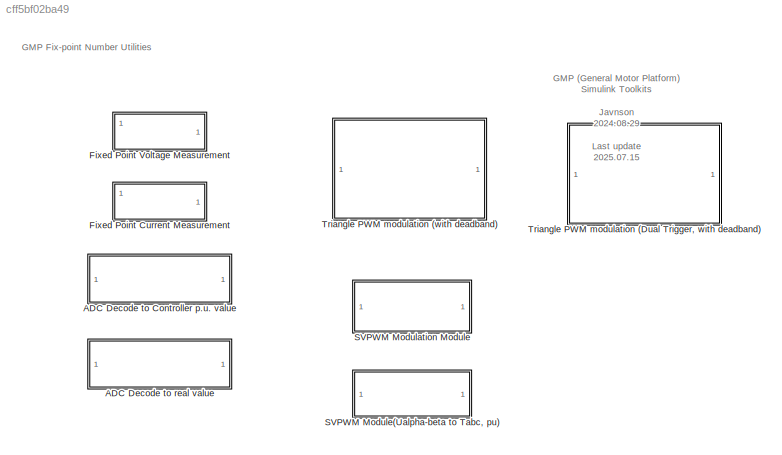
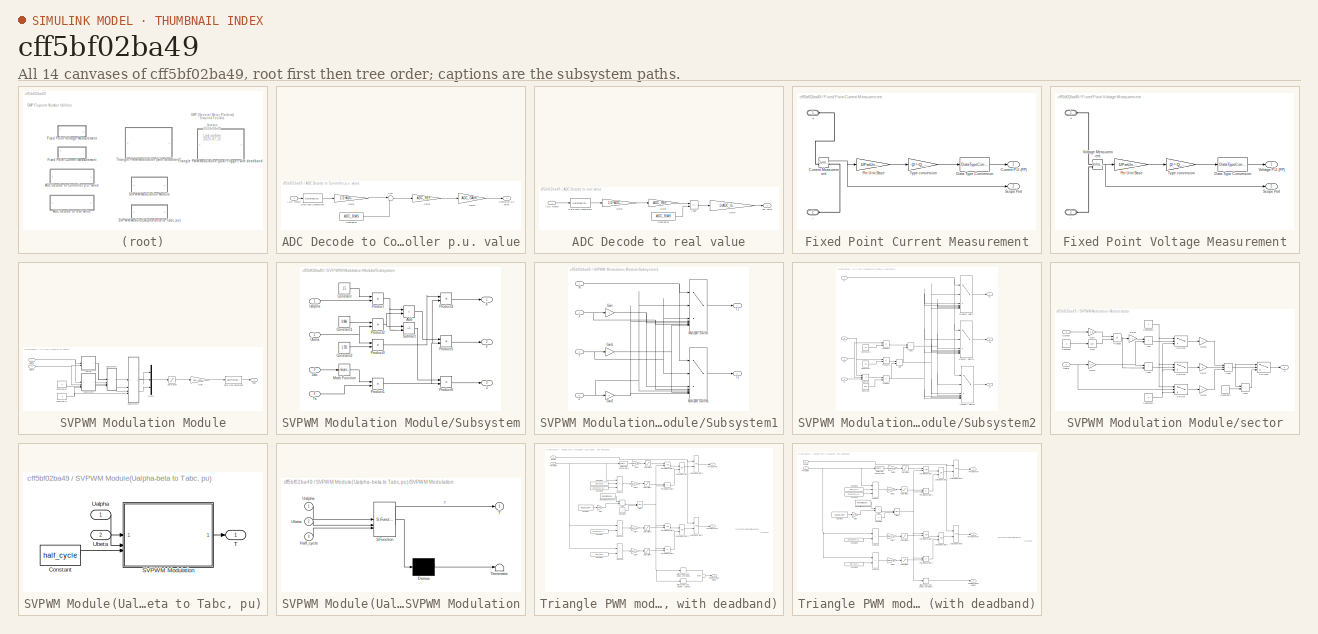
[diagram: thumbnail index - all 14 canvases of the model, root first then tree order]
MODEL slx_cff5bf02ba49
KIND library
CONFIG AbsTol = auto
CONFIG EnableMultiTasking = off
CONFIG FixedStep = auto
CONFIG MaxStep = auto
CONFIG MinStep = auto
CONFIG RelTol = 1e-3
CONFIG SampleTimeConstraint = Unconstrained
CONFIG SolverName = VariableStepAuto
CONFIG StartTime = 0.0
CONFIG StopTime = 10.0
BLOCK [SubSystem] ADC Decode to Controller p.u. value
  CopyFcn = set_param(gcbh,'LinkStatus','none');
BLOCK [Inport] ADC Decode to Controller p.u. value/ADC Result
BLOCK [Constant] ADC Decode to Controller p.u. value/Constant16
  Value = ADC_BIAS
BLOCK [Outport] ADC Decode to Controller p.u. value/Controller p.u. value
BLOCK [DataTypeConversion] ADC Decode to Controller p.u. value/Data Type Conversion1
  OutDataTypeStr = double
  RndMeth = Floor
  SaturateOnIntegerOverflow = off
BLOCK [Gain] ADC Decode to Controller p.u. value/Gain2
  Gain = 1/2^ADC_BIT
BLOCK [Gain] ADC Decode to Controller p.u. value/Gain3
  Gain = ADC_REF
BLOCK [Gain] ADC Decode to Controller p.u. value/Gain4
  Gain = ADC_GAIN
BLOCK [Sum] ADC Decode to Controller p.u. value/Sum
  Inputs = |+-
BLOCK [SubSystem] ADC Decode to real value
  CopyFcn = set_param(gcbh,'LinkStatus','none');
BLOCK [Inport] ADC Decode to real value/ADC Result
BLOCK [Sum] ADC Decode to real value/Add2
  IconShape = rectangular
  Inputs = +-
BLOCK [Constant] ADC Decode to real value/Constant16
  Value = ADC_BIAS
BLOCK [DataTypeConversion] ADC Decode to real value/Data Type Conversion1
  OutDataTypeStr = double
  RndMeth = Floor
  SaturateOnIntegerOverflow = off
BLOCK [Gain] ADC Decode to real value/Gain2
  Gain = 1/2^ADC_BIT
BLOCK [Gain] ADC Decode to real value/Gain3
  Gain = ADC_REF
BLOCK [Gain] ADC Decode to real value/Gain4
  Gain = 1/ADC_GAIN/ADC_REF
BLOCK [Outport] ADC Decode to real value/real value
BLOCK [SubSystem] Fixed Point Current Measurement
  CopyFcn = set_param(gcbh,'LinkStatus','none');
BLOCK [PMIOPort] Fixed Point Current Measurement/+
  Side = Left
BLOCK [PMIOPort] Fixed Point Current Measurement/-
  Port = 2
  Side = Left
BLOCK [Reference] Fixed Point Current Measurement/Current Measurement  REF=spsCurrentMeasurementLib/Current Measurement
  LibrarySourceBlock = sps_lib/Sensors and Measurements/Current Measurement
  SourceBlock = spsCurrentMeasurementLib/Current Measurement
  SourceType = Current Measurement
  UserDataPersistent = on
BLOCK [Outport] Fixed Point Current Measurement/Current P.U.(FP)
BLOCK [DataTypeConversion] Fixed Point Current Measurement/Data Type Conversion
  ConvertRealWorld = Stored Integer (SI)
  LockScale = on
  OutDataTypeStr = int32
  RndMeth = Floor
  SaturateOnIntegerOverflow = off
BLOCK [Gain] Fixed Point Current Measurement/Per Unit Base
  Gain = 1/PerUnit_Base
BLOCK [Outport] Fixed Point Current Measurement/Scope Port
  Port = 2
BLOCK [Gain] Fixed Point Current Measurement/Type conversion
  Gain = (2 ^ Q_VALUE)
BLOCK [SubSystem] Fixed Point Voltage Measurement
BLOCK [PMIOPort] Fixed Point Voltage Measurement/+
  Side = Left
BLOCK [PMIOPort] Fixed Point Voltage Measurement/-
  Port = 2
  Side = Left
BLOCK [DataTypeConversion] Fixed Point Voltage Measurement/Data Type Conversion
  ConvertRealWorld = Stored Integer (SI)
  LockScale = on
  OutDataTypeStr = int32
  RndMeth = Floor
  SaturateOnIntegerOverflow = off
BLOCK [Gain] Fixed Point Voltage Measurement/Per Unit Base
  Gain = 1/PerUnit_Base
BLOCK [Outport] Fixed Point Voltage Measurement/Scope Port
  Port = 2
BLOCK [Gain] Fixed Point Voltage Measurement/Type conversion
  Gain = (2 ^ Q_VALUE)
BLOCK [Reference] Fixed Point Voltage Measurement/Voltage Measurement  REF=spsVoltageMeasurementLib/Voltage Measurement
  LibrarySourceBlock = sps_lib/Sensors and Measurements/Voltage Measurement
  SourceBlock = spsVoltageMeasurementLib/Voltage Measurement
  SourceType = Voltage Measurement
  UserDataPersistent = on
BLOCK [Outport] Fixed Point Voltage Measurement/Voltage P.U.(FP)
BLOCK [SubSystem] SVPWM Modulation Module
BLOCK [Constant] SVPWM Modulation Module/Constant14
BLOCK [Constant] SVPWM Modulation Module/Constant15
BLOCK [DataTypeConversion] SVPWM Modulation Module/Data Type Conversion
  OutDataTypeStr = uint32
  RndMeth = Floor
  SaturateOnIntegerOverflow = off
BLOCK [Gain] SVPWM Modulation Module/Gain
  Gain = half_cmp
BLOCK [Mux] SVPWM Modulation Module/Mux3
  DisplayOption = bar
  Inputs = 3
BLOCK [Saturate] SVPWM Modulation Module/Saturation
  LowerLimit = -1
  UpperLimit = 1
BLOCK [SubSystem] SVPWM Modulation Module/Subsystem
BLOCK [Sum] SVPWM Modulation Module/Subsystem/Add
  IconShape = rectangular
BLOCK [Constant] SVPWM Modulation Module/Subsystem/Constant
  Value = 1.5
BLOCK [Constant] SVPWM Modulation Module/Subsystem/Constant1
  Value = 0.866
BLOCK [Constant] SVPWM Modulation Module/Subsystem/Constant2
  Value = 1.732
BLOCK [Math] SVPWM Modulation Module/Subsystem/Math Function
  Operator = reciprocal
BLOCK [Product] SVPWM Modulation Module/Subsystem/Product
BLOCK [Product] SVPWM Modulation Module/Subsystem/Product1
BLOCK [Product] SVPWM Modulation Module/Subsystem/Product2
BLOCK [Product] SVPWM Modulation Module/Subsystem/Product3
BLOCK [Product] SVPWM Modulation Module/Subsystem/Product4
BLOCK [Product] SVPWM Modulation Module/Subsystem/Product5
BLOCK [Product] SVPWM Modulation Module/Subsystem/Product6
BLOCK [Sum] SVPWM Modulation Module/Subsystem/Subtract
  IconShape = rectangular
  Inputs = +-
BLOCK [Inport] SVPWM Modulation Module/Subsystem/Ts
  Port = 4
BLOCK [Inport] SVPWM Modulation Module/Subsystem/Ualpha
BLOCK [Inport] SVPWM Modulation Module/Subsystem/Ubeta
  Port = 2
BLOCK [Inport] SVPWM Modulation Module/Subsystem/Udc
  Port = 3
BLOCK [Outport] SVPWM Modulation Module/Subsystem/X
BLOCK [Outport] SVPWM Modulation Module/Subsystem/Y
  Port = 2
BLOCK [Outport] SVPWM Modulation Module/Subsystem/Z
  Port = 3
BLOCK [SubSystem] SVPWM Modulation Module/Subsystem1
BLOCK [Gain] SVPWM Modulation Module/Subsystem1/Gain
  Gain = -1
BLOCK [Gain] SVPWM Modulation Module/Subsystem1/Gain1
  Gain = -1
BLOCK [Gain] SVPWM Modulation Module/Subsystem1/Gain2
  Gain = -1
BLOCK [MultiPortSwitch] SVPWM Modulation Module/Subsystem1/Multiport Switch
  DiagnosticForDefault = None
  InputSameDT = off
  Inputs = 6
  SaturateOnIntegerOverflow = off
BLOCK [MultiPortSwitch] SVPWM Modulation Module/Subsystem1/Multiport Switch1
  DiagnosticForDefault = None
  InputSameDT = off
  Inputs = 6
  SaturateOnIntegerOverflow = off
BLOCK [Inport] SVPWM Modulation Module/Subsystem1/N
BLOCK [Outport] SVPWM Modulation Module/Subsystem1/T1
BLOCK [Outport] SVPWM Modulation Module/Subsystem1/T2
  Port = 2
BLOCK [Inport] SVPWM Modulation Module/Subsystem1/X
  Port = 2
BLOCK [Inport] SVPWM Modulation Module/Subsystem1/Y
  Port = 3
BLOCK [Inport] SVPWM Modulation Module/Subsystem1/Z
  Port = 4
BLOCK [SubSystem] SVPWM Modulation Module/Subsystem2
BLOCK [Sum] SVPWM Modulation Module/Subsystem2/Add
  IconShape = rectangular
BLOCK [Sum] SVPWM Modulation Module/Subsystem2/Add1
  IconShape = rectangular
BLOCK [Constant] SVPWM Modulation Module/Subsystem2/Constant
  Value = 0.25
BLOCK [Constant] SVPWM Modulation Module/Subsystem2/Constant1
  Value = 0.5
BLOCK [Constant] SVPWM Modulation Module/Subsystem2/Constant2
  Value = 0.5
BLOCK [MultiPortSwitch] SVPWM Modulation Module/Subsystem2/Multiport Switch
  DiagnosticForDefault = None
  InputSameDT = off
  Inputs = 6
  SaturateOnIntegerOverflow = off
BLOCK [MultiPortSwitch] SVPWM Modulation Module/Subsystem2/Multiport Switch1
  DiagnosticForDefault = None
  InputSameDT = off
  Inputs = 6
  SaturateOnIntegerOverflow = off
BLOCK [MultiPortSwitch] SVPWM Modulation Module/Subsystem2/Multiport Switch2
  DiagnosticForDefault = None
  InputSameDT = off
  Inputs = 6
  SaturateOnIntegerOverflow = off
BLOCK [Inport] SVPWM Modulation Module/Subsystem2/N
BLOCK [Product] SVPWM Modulation Module/Subsystem2/Product
BLOCK [Product] SVPWM Modulation Module/Subsystem2/Product1
BLOCK [Product] SVPWM Modulation Module/Subsystem2/Product2
BLOCK [Sum] SVPWM Modulation Module/Subsystem2/Subtract
  IconShape = rectangular
  Inputs = --+
BLOCK [Inport] SVPWM Modulation Module/Subsystem2/T1
  Interpolate = off
  Port = 2
BLOCK [Inport] SVPWM Modulation Module/Subsystem2/T2
  Port = 3
BLOCK [Outport] SVPWM Modulation Module/Subsystem2/Ta
BLOCK [Outport] SVPWM Modulation Module/Subsystem2/Tb
  Port = 2
BLOCK [Outport] SVPWM Modulation Module/Subsystem2/Tc
  Port = 3
BLOCK [Inport] SVPWM Modulation Module/Subsystem2/Ts
  Port = 4
BLOCK [Outport] SVPWM Modulation Module/Tabc
BLOCK [Inport] SVPWM Modulation Module/Ualpha
BLOCK [Inport] SVPWM Modulation Module/Ubeta
  Port = 2
BLOCK [SubSystem] SVPWM Modulation Module/sector
BLOCK [Sum] SVPWM Modulation Module/sector/Add
  IconShape = rectangular
BLOCK [Sum] SVPWM Modulation Module/sector/Add1
  IconShape = rectangular
BLOCK [Sum] SVPWM Modulation Module/sector/Add2
  IconShape = rectangular
  Inputs = +++
BLOCK [Sum] SVPWM Modulation Module/sector/Add3
  IconShape = rectangular
BLOCK [Constant] SVPWM Modulation Module/sector/Constant
  Value = 3
BLOCK [Constant] SVPWM Modulation Module/sector/Constant1
  Value = 0
BLOCK [Constant] SVPWM Modulation Module/sector/Constant2
BLOCK [Constant] SVPWM Modulation Module/sector/Constant3
BLOCK [Gain] SVPWM Modulation Module/sector/Gain
  Gain = 0.5
BLOCK [Gain] SVPWM Modulation Module/sector/Gain1
  Gain = -1/2
BLOCK [Gain] SVPWM Modulation Module/sector/Gain2
  Gain = -1
BLOCK [Gain] SVPWM Modulation Module/sector/Gain3
  Gain = 4
BLOCK [Gain] SVPWM Modulation Module/sector/Gain4
  Gain = 2
BLOCK [Gain] SVPWM Modulation Module/sector/Gain5
BLOCK [Outport] SVPWM Modulation Module/sector/N
BLOCK [Product] SVPWM Modulation Module/sector/Product
BLOCK [Sqrt] SVPWM Modulation Module/sector/Sqrt
BLOCK [Switch] SVPWM Modulation Module/sector/Switch
  InputSameDT = off
  SaturateOnIntegerOverflow = off
BLOCK [Switch] SVPWM Modulation Module/sector/Switch1
  InputSameDT = off
  SaturateOnIntegerOverflow = off
BLOCK [Switch] SVPWM Modulation Module/sector/Switch2
  InputSameDT = off
  SaturateOnIntegerOverflow = off
BLOCK [Switch] SVPWM Modulation Module/sector/Switch3
  Criteria = u2 > Threshold
  InputSameDT = off
  SaturateOnIntegerOverflow = off
BLOCK [Inport] SVPWM Modulation Module/sector/Ualpha
BLOCK [Inport] SVPWM Modulation Module/sector/Ubeta
  Port = 2
BLOCK [SubSystem] SVPWM Module(Ualpha-beta to Tabc, pu)
BLOCK [Constant] SVPWM Module(Ualpha-beta to Tabc, pu)/Constant
  Value = half_cycle
BLOCK [SubSystem] SVPWM Module(Ualpha-beta to Tabc, pu)/SVPWM Modulation
  ErrorFcn = Stateflow.Translate.translate
  LibrarySourceBlock = simulink/User-Defined\nFunctions/MATLAB Function
  PermitHierarchicalResolution = ExplicitOnly
  SFBlockType = MATLAB Function
  TreatAsAtomicUnit = on
BLOCK [Demux] SVPWM Module(Ualpha-beta to Tabc, pu)/SVPWM Modulation/ Demux 
  Outputs = 1
BLOCK [S-Function] SVPWM Module(Ualpha-beta to Tabc, pu)/SVPWM Modulation/ SFunction 
  EnableBusSupport = off
  FunctionName = sf_sfun
  PortCounts = [3 2]
  SFcnIsStateOwnerBlock = off
  SFunctionDeploymentMode = off
  Tag = Stateflow S-Function 1
BLOCK [Terminator] SVPWM Module(Ualpha-beta to Tabc, pu)/SVPWM Modulation/ Terminator 
BLOCK [Inport] SVPWM Module(Ualpha-beta to Tabc, pu)/SVPWM Modulation/Half_cycle
  Port = 3
BLOCK [Outport] SVPWM Module(Ualpha-beta to Tabc, pu)/SVPWM Modulation/T
BLOCK [Inport] SVPWM Module(Ualpha-beta to Tabc, pu)/SVPWM Modulation/Ualpha
BLOCK [Inport] SVPWM Module(Ualpha-beta to Tabc, pu)/SVPWM Modulation/Ubeta
  Port = 2
BLOCK [Outport] SVPWM Module(Ualpha-beta to Tabc, pu)/T
BLOCK [Inport] SVPWM Module(Ualpha-beta to Tabc, pu)/Ualpha
BLOCK [Inport] SVPWM Module(Ualpha-beta to Tabc, pu)/Ubeta
  Port = 2
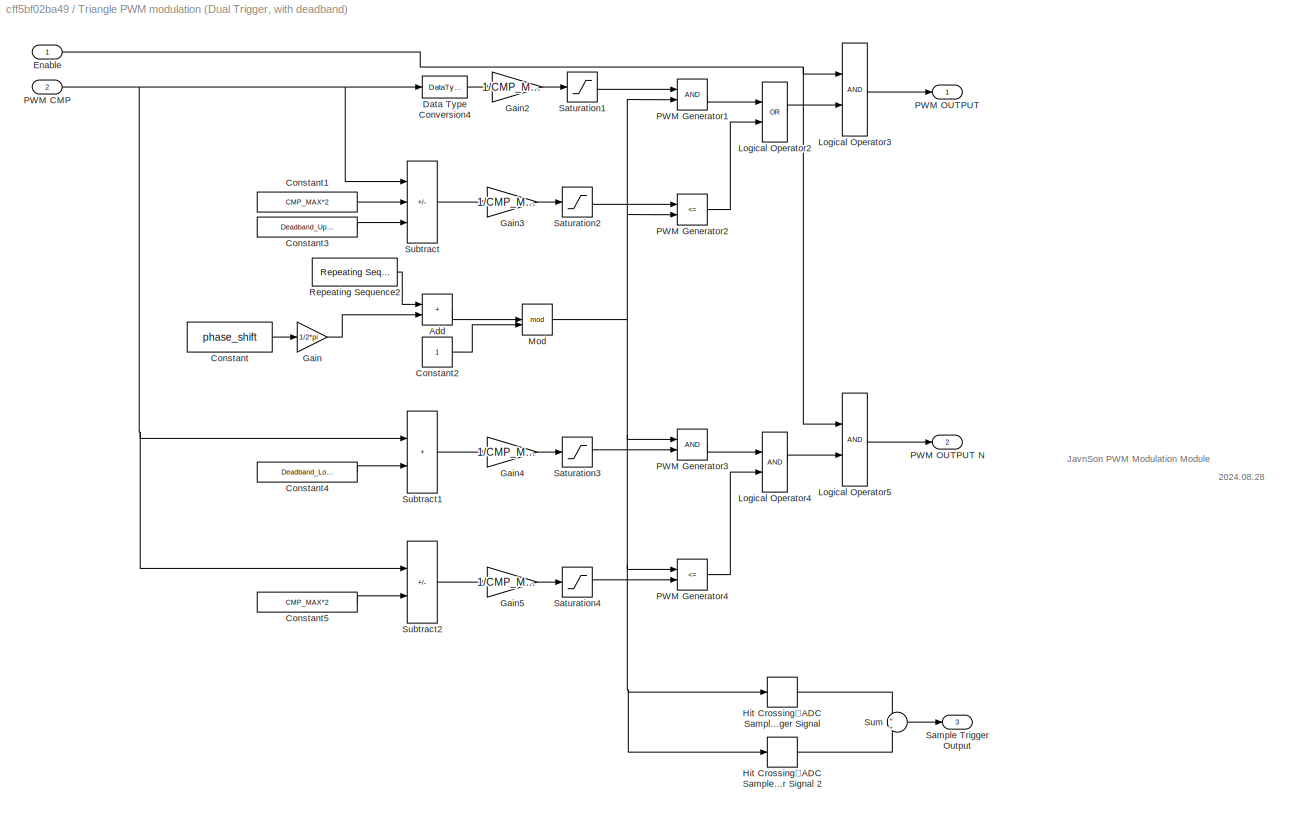
BLOCK [SubSystem] Triangle PWM modulation (Dual Trigger, with deadband)
BLOCK [Sum] Triangle PWM modulation (Dual Trigger, with deadband)/Add
  IconShape = rectangular
BLOCK [Constant] Triangle PWM modulation (Dual Trigger, with deadband)/Constant
  Value = phase_shift
BLOCK [Constant] Triangle PWM modulation (Dual Trigger, with deadband)/Constant1
  Value = CMP_MAX*2
BLOCK [Constant] Triangle PWM modulation (Dual Trigger, with deadband)/Constant2
BLOCK [Constant] Triangle PWM modulation (Dual Trigger, with deadband)/Constant3
  Value = Deadband_Upper
BLOCK [Constant] Triangle PWM modulation (Dual Trigger, with deadband)/Constant4
  Value = Deadband_Lower
BLOCK [Constant] Triangle PWM modulation (Dual Trigger, with deadband)/Constant5
  Value = CMP_MAX*2
BLOCK [DataTypeConversion] Triangle PWM modulation (Dual Trigger, with deadband)/Data Type Conversion4
  OutDataTypeStr = double
  RndMeth = Floor
  SaturateOnIntegerOverflow = off
BLOCK [Inport] Triangle PWM modulation (Dual Trigger, with deadband)/Enable
BLOCK [Gain] Triangle PWM modulation (Dual Trigger, with deadband)/Gain
  Gain = 1/2*pi
BLOCK [Gain] Triangle PWM modulation (Dual Trigger, with deadband)/Gain2
  Gain = 1/CMP_MAX/2
BLOCK [Gain] Triangle PWM modulation (Dual Trigger, with deadband)/Gain3
  Gain = 1/CMP_MAX/2
BLOCK [Gain] Triangle PWM modulation (Dual Trigger, with deadband)/Gain4
  Gain = 1/CMP_MAX/2
BLOCK [Gain] Triangle PWM modulation (Dual Trigger, with deadband)/Gain5
  Gain = 1/CMP_MAX/2
BLOCK [HitCross] Triangle PWM modulation (Dual Trigger, with deadband)/Hit Crossing：ADC Sample Trigger Signal
  HitCrossingDirection = rising
  HitCrossingOffset = 0.5
BLOCK [HitCross] Triangle PWM modulation (Dual Trigger, with deadband)/Hit Crossing：ADC Sample Trigger Signal 2
  HitCrossingDirection = falling
  HitCrossingOffset = 0.5
BLOCK [Logic] Triangle PWM modulation (Dual Trigger, with deadband)/Logical Operator2
  AllPortsSameDT = off
  Operator = OR
  OutDataTypeStr = boolean
BLOCK [Logic] Triangle PWM modulation (Dual Trigger, with deadband)/Logical Operator3
  AllPortsSameDT = off
  OutDataTypeStr = boolean
BLOCK [Logic] Triangle PWM modulation (Dual Trigger, with deadband)/Logical Operator4
  AllPortsSameDT = off
  OutDataTypeStr = boolean
BLOCK [Logic] Triangle PWM modulation (Dual Trigger, with deadband)/Logical Operator5
  AllPortsSameDT = off
  OutDataTypeStr = boolean
BLOCK [Math] Triangle PWM modulation (Dual Trigger, with deadband)/Mod
  Operator = mod
BLOCK [Inport] Triangle PWM modulation (Dual Trigger, with deadband)/PWM CMP
  Port = 2
BLOCK [RelationalOperator] Triangle PWM modulation (Dual Trigger, with deadband)/PWM Generator1
  InputSameDT = off
  OutDataTypeStr = boolean
BLOCK [RelationalOperator] Triangle PWM modulation (Dual Trigger, with deadband)/PWM Generator2
  InputSameDT = off
  Operator = <=
  OutDataTypeStr = boolean
BLOCK [RelationalOperator] Triangle PWM modulation (Dual Trigger, with deadband)/PWM Generator3
  InputSameDT = off
  OutDataTypeStr = boolean
BLOCK [RelationalOperator] Triangle PWM modulation (Dual Trigger, with deadband)/PWM Generator4
  InputSameDT = off
  Operator = <=
  OutDataTypeStr = boolean
BLOCK [Outport] Triangle PWM modulation (Dual Trigger, with deadband)/PWM OUTPUT
BLOCK [Outport] Triangle PWM modulation (Dual Trigger, with deadband)/PWM OUTPUT N
  Port = 2
BLOCK [Reference] Triangle PWM modulation (Dual Trigger, with deadband)/Repeating Sequence2  REF=simulink/Sources/Repeating
Sequence
  SourceBlock = simulink/Sources/Repeating\nSequence
  SourceType = Repeating table
BLOCK [Outport] Triangle PWM modulation (Dual Trigger, with deadband)/Sample Trigger Output
  Port = 3
BLOCK [Saturate] Triangle PWM modulation (Dual Trigger, with deadband)/Saturation1
  LowerLimit = 0
  UpperLimit = 1
BLOCK [Saturate] Triangle PWM modulation (Dual Trigger, with deadband)/Saturation2
  LowerLimit = 0
  UpperLimit = 1
BLOCK [Saturate] Triangle PWM modulation (Dual Trigger, with deadband)/Saturation3
  LowerLimit = 0
  UpperLimit = 1
BLOCK [Saturate] Triangle PWM modulation (Dual Trigger, with deadband)/Saturation4
  LowerLimit = 0
  UpperLimit = 1
BLOCK [Sum] Triangle PWM modulation (Dual Trigger, with deadband)/Subtract
  IconShape = rectangular
  Inputs = -++
BLOCK [Sum] Triangle PWM modulation (Dual Trigger, with deadband)/Subtract1
  IconShape = rectangular
BLOCK [Sum] Triangle PWM modulation (Dual Trigger, with deadband)/Subtract2
  IconShape = rectangular
  Inputs = -+
BLOCK [Sum] Triangle PWM modulation (Dual Trigger, with deadband)/Sum
  Inputs = +|+
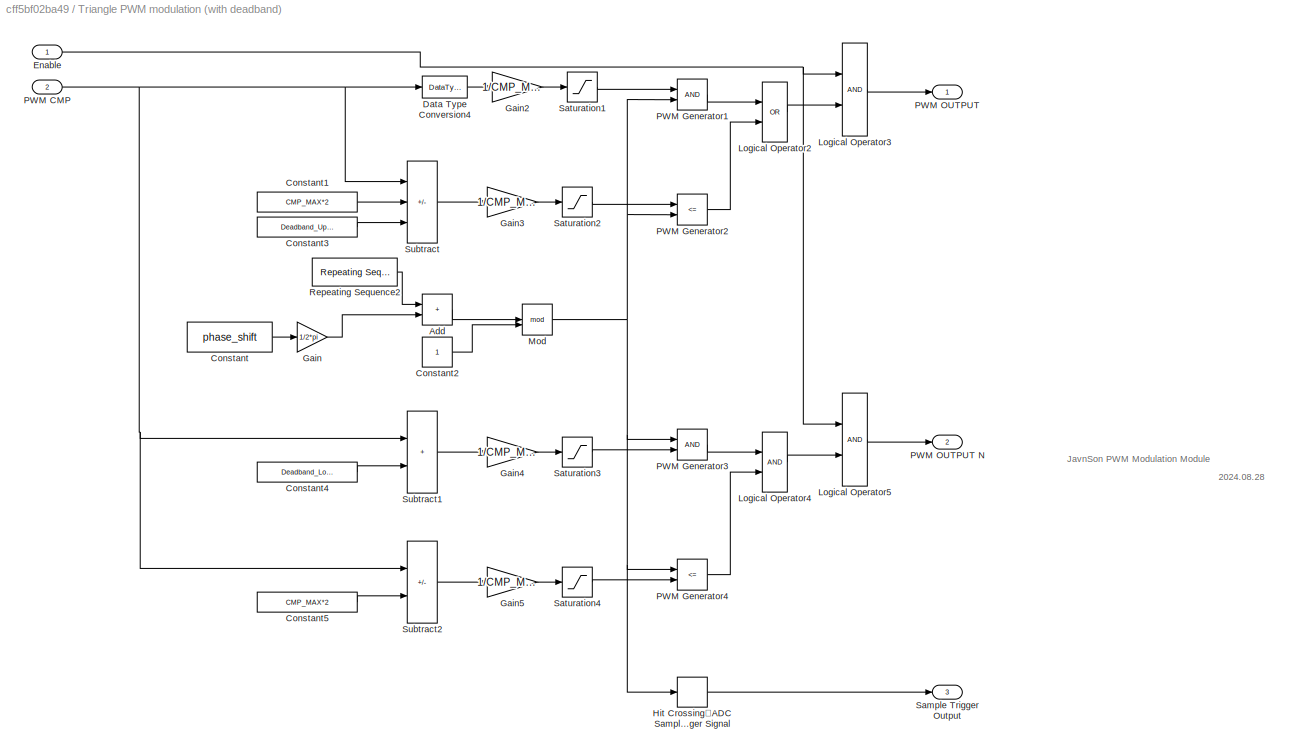
BLOCK [SubSystem] Triangle PWM modulation (with deadband)
BLOCK [Sum] Triangle PWM modulation (with deadband)/Add
  IconShape = rectangular
BLOCK [Constant] Triangle PWM modulation (with deadband)/Constant
  Value = phase_shift
BLOCK [Constant] Triangle PWM modulation (with deadband)/Constant1
  Value = CMP_MAX*2
BLOCK [Constant] Triangle PWM modulation (with deadband)/Constant2
BLOCK [Constant] Triangle PWM modulation (with deadband)/Constant3
  Value = Deadband_Upper
BLOCK [Constant] Triangle PWM modulation (with deadband)/Constant4
  Value = Deadband_Lower
BLOCK [Constant] Triangle PWM modulation (with deadband)/Constant5
  Value = CMP_MAX*2
BLOCK [DataTypeConversion] Triangle PWM modulation (with deadband)/Data Type Conversion4
  OutDataTypeStr = double
  RndMeth = Floor
  SaturateOnIntegerOverflow = off
BLOCK [Inport] Triangle PWM modulation (with deadband)/Enable
BLOCK [Gain] Triangle PWM modulation (with deadband)/Gain
  Gain = 1/2*pi
BLOCK [Gain] Triangle PWM modulation (with deadband)/Gain2
  Gain = 1/CMP_MAX/2
BLOCK [Gain] Triangle PWM modulation (with deadband)/Gain3
  Gain = 1/CMP_MAX/2
BLOCK [Gain] Triangle PWM modulation (with deadband)/Gain4
  Gain = 1/CMP_MAX/2
BLOCK [Gain] Triangle PWM modulation (with deadband)/Gain5
  Gain = 1/CMP_MAX/2
BLOCK [HitCross] Triangle PWM modulation (with deadband)/Hit Crossing：ADC Sample Trigger Signal
  HitCrossingDirection = rising
  HitCrossingOffset = 0.5
BLOCK [Logic] Triangle PWM modulation (with deadband)/Logical Operator2
  AllPortsSameDT = off
  Operator = OR
  OutDataTypeStr = boolean
BLOCK [Logic] Triangle PWM modulation (with deadband)/Logical Operator3
  AllPortsSameDT = off
  OutDataTypeStr = boolean
BLOCK [Logic] Triangle PWM modulation (with deadband)/Logical Operator4
  AllPortsSameDT = off
  OutDataTypeStr = boolean
BLOCK [Logic] Triangle PWM modulation (with deadband)/Logical Operator5
  AllPortsSameDT = off
  OutDataTypeStr = boolean
BLOCK [Math] Triangle PWM modulation (with deadband)/Mod
  Operator = mod
BLOCK [Inport] Triangle PWM modulation (with deadband)/PWM CMP
  Port = 2
BLOCK [RelationalOperator] Triangle PWM modulation (with deadband)/PWM Generator1
  InputSameDT = off
  OutDataTypeStr = boolean
BLOCK [RelationalOperator] Triangle PWM modulation (with deadband)/PWM Generator2
  InputSameDT = off
  Operator = <=
  OutDataTypeStr = boolean
BLOCK [RelationalOperator] Triangle PWM modulation (with deadband)/PWM Generator3
  InputSameDT = off
  OutDataTypeStr = boolean
BLOCK [RelationalOperator] Triangle PWM modulation (with deadband)/PWM Generator4
  InputSameDT = off
  Operator = <=
  OutDataTypeStr = boolean
BLOCK [Outport] Triangle PWM modulation (with deadband)/PWM OUTPUT
BLOCK [Outport] Triangle PWM modulation (with deadband)/PWM OUTPUT N
  Port = 2
BLOCK [Reference] Triangle PWM modulation (with deadband)/Repeating Sequence2  REF=simulink/Sources/Repeating
Sequence
  SourceBlock = simulink/Sources/Repeating\nSequence
  SourceType = Repeating table
BLOCK [Outport] Triangle PWM modulation (with deadband)/Sample Trigger Output
  Port = 3
BLOCK [Saturate] Triangle PWM modulation (with deadband)/Saturation1
  LowerLimit = 0
  UpperLimit = 1
BLOCK [Saturate] Triangle PWM modulation (with deadband)/Saturation2
  LowerLimit = 0
  UpperLimit = 1
BLOCK [Saturate] Triangle PWM modulation (with deadband)/Saturation3
  LowerLimit = 0
  UpperLimit = 1
BLOCK [Saturate] Triangle PWM modulation (with deadband)/Saturation4
  LowerLimit = 0
  UpperLimit = 1
BLOCK [Sum] Triangle PWM modulation (with deadband)/Subtract
  IconShape = rectangular
  Inputs = -++
BLOCK [Sum] Triangle PWM modulation (with deadband)/Subtract1
  IconShape = rectangular
BLOCK [Sum] Triangle PWM modulation (with deadband)/Subtract2
  IconShape = rectangular
  Inputs = -+
ANNOTATION (root): GMP (General Motor Platform) Simulink Toolkits
ANNOTATION (root): GMP Fix-point Number Utilities
ANNOTATION (root): Javnson 2024.08.29 Last update 2025.07.15
ANNOTATION Triangle PWM modulation (Dual Trigger, with deadband): 2024.08.28
ANNOTATION Triangle PWM modulation (Dual Trigger, with deadband): JavnSon PWM Modulation Module
ANNOTATION Triangle PWM modulation (with deadband): 2024.08.28
ANNOTATION Triangle PWM modulation (with deadband): JavnSon PWM Modulation Module
LINE ADC Decode to Controller p.u. value/ADC Result:1 -> ADC Decode to Controller p.u. value/Data Type Conversion1:1
LINE ADC Decode to Controller p.u. value/Constant16:1 -> ADC Decode to Controller p.u. value/Sum:2
LINE ADC Decode to Controller p.u. value/Data Type Conversion1:1 -> ADC Decode to Controller p.u. value/Gain2:1
LINE ADC Decode to Controller p.u. value/Gain2:1 -> ADC Decode to Controller p.u. value/Sum:1
LINE ADC Decode to Controller p.u. value/Gain3:1 -> ADC Decode to Controller p.u. value/Gain4:1
LINE ADC Decode to Controller p.u. value/Gain4:1 -> ADC Decode to Controller p.u. value/Controller p.u. value:1
LINE ADC Decode to Controller p.u. value/Sum:1 -> ADC Decode to Controller p.u. value/Gain3:1
LINE ADC Decode to real value/ADC Result:1 -> ADC Decode to real value/Data Type Conversion1:1
LINE ADC Decode to real value/Add2:1 -> ADC Decode to real value/Gain4:1
LINE ADC Decode to real value/Constant16:1 -> ADC Decode to real value/Add2:2
LINE ADC Decode to real value/Data Type Conversion1:1 -> ADC Decode to real value/Gain2:1
LINE ADC Decode to real value/Gain2:1 -> ADC Decode to real value/Gain3:1
LINE ADC Decode to real value/Gain3:1 -> ADC Decode to real value/Add2:1
LINE ADC Decode to real value/Gain4:1 -> ADC Decode to real value/real value:1
NET Fixed Point Current Measurement/Current Measurement:1 -> Fixed Point Current Measurement/Per Unit Base:1, Fixed Point Current Measurement/Scope Port:1
LINE Fixed Point Current Measurement/Data Type Conversion:1 -> Fixed Point Current Measurement/Current P.U.(FP):1
LINE Fixed Point Current Measurement/Per Unit Base:1 -> Fixed Point Current Measurement/Type conversion:1
LINE Fixed Point Current Measurement/Type conversion:1 -> Fixed Point Current Measurement/Data Type Conversion:1
LINE Fixed Point Voltage Measurement/Data Type Conversion:1 -> Fixed Point Voltage Measurement/Voltage P.U.(FP):1
LINE Fixed Point Voltage Measurement/Per Unit Base:1 -> Fixed Point Voltage Measurement/Type conversion:1
LINE Fixed Point Voltage Measurement/Type conversion:1 -> Fixed Point Voltage Measurement/Data Type Conversion:1
NET Fixed Point Voltage Measurement/Voltage Measurement:1 -> Fixed Point Voltage Measurement/Per Unit Base:1, Fixed Point Voltage Measurement/Scope Port:1
NET SVPWM Modulation Module/Constant14:1 -> SVPWM Modulation Module/Subsystem2:4, SVPWM Modulation Module/Subsystem:4
LINE SVPWM Modulation Module/Constant15:1 -> SVPWM Modulation Module/Subsystem:3
LINE SVPWM Modulation Module/Data Type Conversion:1 -> SVPWM Modulation Module/Tabc:1
LINE SVPWM Modulation Module/Gain:1 -> SVPWM Modulation Module/Data Type Conversion:1
LINE SVPWM Modulation Module/Mux3:1 -> SVPWM Modulation Module/Saturation:1
LINE SVPWM Modulation Module/Saturation:1 -> SVPWM Modulation Module/Gain:1
LINE SVPWM Modulation Module/Subsystem/Add:1 -> SVPWM Modulation Module/Subsystem/Product5:1
LINE SVPWM Modulation Module/Subsystem/Constant1:1 -> SVPWM Modulation Module/Subsystem/Product2:1
LINE SVPWM Modulation Module/Subsystem/Constant2:1 -> SVPWM Modulation Module/Subsystem/Product3:2
LINE SVPWM Modulation Module/Subsystem/Constant:1 -> SVPWM Modulation Module/Subsystem/Product:1
LINE SVPWM Modulation Module/Subsystem/Math Function:1 -> SVPWM Modulation Module/Subsystem/Product1:1
NET SVPWM Modulation Module/Subsystem/Product1:1 -> SVPWM Modulation Module/Subsystem/Product4:2, SVPWM Modulation Module/Subsystem/Product5:2, SVPWM Modulation Module/Subsystem/Product6:2
NET SVPWM Modulation Module/Subsystem/Product2:1 -> SVPWM Modulation Module/Subsystem/Add:2, SVPWM Modulation Module/Subsystem/Subtract:1
LINE SVPWM Modulation Module/Subsystem/Product3:1 -> SVPWM Modulation Module/Subsystem/Product4:1
LINE SVPWM Modulation Module/Subsystem/Product4:1 -> SVPWM Modulation Module/Subsystem/X:1
LINE SVPWM Modulation Module/Subsystem/Product5:1 -> SVPWM Modulation Module/Subsystem/Y:1
LINE SVPWM Modulation Module/Subsystem/Product6:1 -> SVPWM Modulation Module/Subsystem/Z:1
NET SVPWM Modulation Module/Subsystem/Product:1 -> SVPWM Modulation Module/Subsystem/Add:1, SVPWM Modulation Module/Subsystem/Subtract:2
LINE SVPWM Modulation Module/Subsystem/Subtract:1 -> SVPWM Modulation Module/Subsystem/Product6:1
LINE SVPWM Modulation Module/Subsystem/Ts:1 -> SVPWM Modulation Module/Subsystem/Product1:2
LINE SVPWM Modulation Module/Subsystem/Ualpha:1 -> SVPWM Modulation Module/Subsystem/Product:2
NET SVPWM Modulation Module/Subsystem/Ubeta:1 -> SVPWM Modulation Module/Subsystem/Product2:2, SVPWM Modulation Module/Subsystem/Product3:1
LINE SVPWM Modulation Module/Subsystem/Udc:1 -> SVPWM Modulation Module/Subsystem/Math Function:1
NET SVPWM Modulation Module/Subsystem1/Gain1:1 -> SVPWM Modulation Module/Subsystem1/Multiport Switch1:6, SVPWM Modulation Module/Subsystem1/Multiport Switch:7
NET SVPWM Modulation Module/Subsystem1/Gain2:1 -> SVPWM Modulation Module/Subsystem1/Multiport Switch1:7, SVPWM Modulation Module/Subsystem1/Multiport Switch:4
NET SVPWM Modulation Module/Subsystem1/Gain:1 -> SVPWM Modulation Module/Subsystem1/Multiport Switch1:3, SVPWM Modulation Module/Subsystem1/Multiport Switch:5
LINE SVPWM Modulation Module/Subsystem1/Multiport Switch1:1 -> SVPWM Modulation Module/Subsystem1/T2:1
LINE SVPWM Modulation Module/Subsystem1/Multiport Switch:1 -> SVPWM Modulation Module/Subsystem1/T1:1
NET SVPWM Modulation Module/Subsystem1/N:1 -> SVPWM Modulation Module/Subsystem1/Multiport Switch1:1, SVPWM Modulation Module/Subsystem1/Multiport Switch:1
NET SVPWM Modulation Module/Subsystem1/X:1 -> SVPWM Modulation Module/Subsystem1/Gain:1, SVPWM Modulation Module/Subsystem1/Multiport Switch1:4, SVPWM Modulation Module/Subsystem1/Multiport Switch:6
NET SVPWM Modulation Module/Subsystem1/Y:1 -> SVPWM Modulation Module/Subsystem1/Gain1:1, SVPWM Modulation Module/Subsystem1/Multiport Switch1:2, SVPWM Modulation Module/Subsystem1/Multiport Switch:3
NET SVPWM Modulation Module/Subsystem1/Z:1 -> SVPWM Modulation Module/Subsystem1/Gain2:1, SVPWM Modulation Module/Subsystem1/Multiport Switch1:5, SVPWM Modulation Module/Subsystem1/Multiport Switch:2
LINE SVPWM Modulation Module/Subsystem1:1 -> SVPWM Modulation Module/Subsystem2:2
LINE SVPWM Modulation Module/Subsystem1:2 -> SVPWM Modulation Module/Subsystem2:3
NET SVPWM Modulation Module/Subsystem2/Add1:1 -> SVPWM Modulation Module/Subsystem2/Multiport Switch1:3, SVPWM Modulation Module/Subsystem2/Multiport Switch1:7, SVPWM Modulation Module/Subsystem2/Multiport Switch2:2, SVPWM Modulation Module/Subsystem2/Multiport Switch2:4, SVPWM Modulation Module/Subsystem2/Multiport Switch:5, SVPWM Modulation Module/Subsystem2/Multiport Switch:6
NET SVPWM Modulation Module/Subsystem2/Add:1 -> SVPWM Modulation Module/Subsystem2/Add1:2, SVPWM Modulation Module/Subsystem2/Multiport Switch1:4, SVPWM Modulation Module/Subsystem2/Multiport Switch1:5, SVPWM Modulation Module/Subsystem2/Multiport Switch2:3, SVPWM Modulation Module/Subsystem2/Multiport Switch2:6, SVPWM Modulation Module/Subsystem2/Multiport Switch:2, SVPWM Modulation Module/Subsystem2/Multiport Switch:7
LINE SVPWM Modulation Module/Subsystem2/Constant1:1 -> SVPWM Modulation Module/Subsystem2/Product1:2
LINE SVPWM Modulation Module/Subsystem2/Constant2:1 -> SVPWM Modulation Module/Subsystem2/Product2:2
LINE SVPWM Modulation Module/Subsystem2/Constant:1 -> SVPWM Modulation Module/Subsystem2/Product:2
LINE SVPWM Modulation Module/Subsystem2/Multiport Switch1:1 -> SVPWM Modulation Module/Subsystem2/Tb:1
LINE SVPWM Modulation Module/Subsystem2/Multiport Switch2:1 -> SVPWM Modulation Module/Subsystem2/Tc:1
LINE SVPWM Modulation Module/Subsystem2/Multiport Switch:1 -> SVPWM Modulation Module/Subsystem2/Ta:1
NET SVPWM Modulation Module/Subsystem2/N:1 -> SVPWM Modulation Module/Subsystem2/Multiport Switch1:1, SVPWM Modulation Module/Subsystem2/Multiport Switch2:1, SVPWM Modulation Module/Subsystem2/Multiport Switch:1
LINE SVPWM Modulation Module/Subsystem2/Product1:1 -> SVPWM Modulation Module/Subsystem2/Add1:1
LINE SVPWM Modulation Module/Subsystem2/Product2:1 -> SVPWM Modulation Module/Subsystem2/Add:1
NET SVPWM Modulation Module/Subsystem2/Product:1 -> SVPWM Modulation Module/Subsystem2/Add:2, SVPWM Modulation Module/Subsystem2/Multiport Switch1:2, SVPWM Modulation Module/Subsystem2/Multiport Switch1:6, SVPWM Modulation Module/Subsystem2/Multiport Switch2:5, SVPWM Modulation Module/Subsystem2/Multiport Switch2:7, SVPWM Modulation Module/Subsystem2/Multiport Switch:3, SVPWM Modulation Module/Subsystem2/Multiport Switch:4
LINE SVPWM Modulation Module/Subsystem2/Subtract:1 -> SVPWM Modulation Module/Subsystem2/Product:1
NET SVPWM Modulation Module/Subsystem2/T1:1 -> SVPWM Modulation Module/Subsystem2/Product2:1, SVPWM Modulation Module/Subsystem2/Subtract:1
NET SVPWM Modulation Module/Subsystem2/T2:1 -> SVPWM Modulation Module/Subsystem2/Product1:1, SVPWM Modulation Module/Subsystem2/Subtract:2
LINE SVPWM Modulation Module/Subsystem2/Ts:1 -> SVPWM Modulation Module/Subsystem2/Subtract:3
LINE SVPWM Modulation Module/Subsystem2:1 -> SVPWM Modulation Module/Mux3:1
LINE SVPWM Modulation Module/Subsystem2:2 -> SVPWM Modulation Module/Mux3:2
LINE SVPWM Modulation Module/Subsystem2:3 -> SVPWM Modulation Module/Mux3:3
LINE SVPWM Modulation Module/Subsystem:1 -> SVPWM Modulation Module/Subsystem1:2
LINE SVPWM Modulation Module/Subsystem:2 -> SVPWM Modulation Module/Subsystem1:3
LINE SVPWM Modulation Module/Subsystem:3 -> SVPWM Modulation Module/Subsystem1:4
NET SVPWM Modulation Module/Ualpha:1 -> SVPWM Modulation Module/Subsystem:1, SVPWM Modulation Module/sector:1
NET SVPWM Modulation Module/Ubeta:1 -> SVPWM Modulation Module/Subsystem:2, SVPWM Modulation Module/sector:2
LINE SVPWM Modulation Module/sector/Add1:1 -> SVPWM Modulation Module/sector/Switch1:2
NET SVPWM Modulation Module/sector/Add2:1 -> SVPWM Modulation Module/sector/Add3:1, SVPWM Modulation Module/sector/Switch3:1, SVPWM Modulation Module/sector/Switch3:2
LINE SVPWM Modulation Module/sector/Add3:1 -> SVPWM Modulation Module/sector/Switch3:3
LINE SVPWM Modulation Module/sector/Add:1 -> SVPWM Modulation Module/sector/Switch2:2
NET SVPWM Modulation Module/sector/Constant1:1 -> SVPWM Modulation Module/sector/Switch1:3, SVPWM Modulation Module/sector/Switch2:3, SVPWM Modulation Module/sector/Switch:3
NET SVPWM Modulation Module/sector/Constant2:1 -> SVPWM Modulation Module/sector/Switch1:1, SVPWM Modulation Module/sector/Switch2:1, SVPWM Modulation Module/sector/Switch:1
LINE SVPWM Modulation Module/sector/Constant3:1 -> SVPWM Modulation Module/sector/Add3:2
LINE SVPWM Modulation Module/sector/Constant:1 -> SVPWM Modulation Module/sector/Sqrt:1
NET SVPWM Modulation Module/sector/Gain1:1 -> SVPWM Modulation Module/sector/Add1:1, SVPWM Modulation Module/sector/Add:2
LINE SVPWM Modulation Module/sector/Gain2:1 -> SVPWM Modulation Module/sector/Add:1
LINE SVPWM Modulation Module/sector/Gain3:1 -> SVPWM Modulation Module/sector/Add2:1
LINE SVPWM Modulation Module/sector/Gain4:1 -> SVPWM Modulation Module/sector/Add2:2
LINE SVPWM Modulation Module/sector/Gain5:1 -> SVPWM Modulation Module/sector/Add2:3
LINE SVPWM Modulation Module/sector/Gain:1 -> SVPWM Modulation Module/sector/Product:1
NET SVPWM Modulation Module/sector/Product:1 -> SVPWM Modulation Module/sector/Add1:2, SVPWM Modulation Module/sector/Gain2:1
LINE SVPWM Modulation Module/sector/Sqrt:1 -> SVPWM Modulation Module/sector/Product:2
LINE SVPWM Modulation Module/sector/Switch1:1 -> SVPWM Modulation Module/sector/Gain4:1
LINE SVPWM Modulation Module/sector/Switch2:1 -> SVPWM Modulation Module/sector/Gain3:1
LINE SVPWM Modulation Module/sector/Switch3:1 -> SVPWM Modulation Module/sector/N:1
LINE SVPWM Modulation Module/sector/Switch:1 -> SVPWM Modulation Module/sector/Gain5:1
LINE SVPWM Modulation Module/sector/Ualpha:1 -> SVPWM Modulation Module/sector/Gain:1
NET SVPWM Modulation Module/sector/Ubeta:1 -> SVPWM Modulation Module/sector/Gain1:1, SVPWM Modulation Module/sector/Switch:2
NET SVPWM Modulation Module/sector:1 -> SVPWM Modulation Module/Subsystem1:1, SVPWM Modulation Module/Subsystem2:1
LINE SVPWM Module(Ualpha-beta to Tabc, pu)/Constant:1 -> SVPWM Module(Ualpha-beta to Tabc, pu)/SVPWM Modulation:3
LINE SVPWM Module(Ualpha-beta to Tabc, pu)/SVPWM Modulation:1 -> SVPWM Module(Ualpha-beta to Tabc, pu)/T:1
LINE SVPWM Module(Ualpha-beta to Tabc, pu)/Ualpha:1 -> SVPWM Module(Ualpha-beta to Tabc, pu)/SVPWM Modulation:1
LINE SVPWM Module(Ualpha-beta to Tabc, pu)/Ubeta:1 -> SVPWM Module(Ualpha-beta to Tabc, pu)/SVPWM Modulation:2
LINE Triangle PWM modulation (Dual Trigger, with deadband)/Add:1 -> Triangle PWM modulation (Dual Trigger, with deadband)/Mod:1
LINE Triangle PWM modulation (Dual Trigger, with deadband)/Constant1:1 -> Triangle PWM modulation (Dual Trigger, with deadband)/Subtract:2
LINE Triangle PWM modulation (Dual Trigger, with deadband)/Constant2:1 -> Triangle PWM modulation (Dual Trigger, with deadband)/Mod:2
LINE Triangle PWM modulation (Dual Trigger, with deadband)/Constant3:1 -> Triangle PWM modulation (Dual Trigger, with deadband)/Subtract:3
LINE Triangle PWM modulation (Dual Trigger, with deadband)/Constant4:1 -> Triangle PWM modulation (Dual Trigger, with deadband)/Subtract1:2
LINE Triangle PWM modulation (Dual Trigger, with deadband)/Constant5:1 -> Triangle PWM modulation (Dual Trigger, with deadband)/Subtract2:2
LINE Triangle PWM modulation (Dual Trigger, with deadband)/Constant:1 -> Triangle PWM modulation (Dual Trigger, with deadband)/Gain:1
LINE Triangle PWM modulation (Dual Trigger, with deadband)/Data Type Conversion4:1 -> Triangle PWM modulation (Dual Trigger, with deadband)/Gain2:1
NET Triangle PWM modulation (Dual Trigger, with deadband)/Enable:1 -> Triangle PWM modulation (Dual Trigger, with deadband)/Logical Operator3:1, Triangle PWM modulation (Dual Trigger, with deadband)/Logical Operator5:1
LINE Triangle PWM modulation (Dual Trigger, with deadband)/Gain2:1 -> Triangle PWM modulation (Dual Trigger, with deadband)/Saturation1:1
LINE Triangle PWM modulation (Dual Trigger, with deadband)/Gain3:1 -> Triangle PWM modulation (Dual Trigger, with deadband)/Saturation2:1
LINE Triangle PWM modulation (Dual Trigger, with deadband)/Gain4:1 -> Triangle PWM modulation (Dual Trigger, with deadband)/Saturation3:1
LINE Triangle PWM modulation (Dual Trigger, with deadband)/Gain5:1 -> Triangle PWM modulation (Dual Trigger, with deadband)/Saturation4:1
LINE Triangle PWM modulation (Dual Trigger, with deadband)/Gain:1 -> Triangle PWM modulation (Dual Trigger, with deadband)/Add:2
LINE Triangle PWM modulation (Dual Trigger, with deadband)/Hit Crossing：ADC Sample Trigger Signal 2:1 -> Triangle PWM modulation (Dual Trigger, with deadband)/Sum:2
LINE Triangle PWM modulation (Dual Trigger, with deadband)/Hit Crossing：ADC Sample Trigger Signal:1 -> Triangle PWM modulation (Dual Trigger, with deadband)/Sum:1
LINE Triangle PWM modulation (Dual Trigger, with deadband)/Logical Operator2:1 -> Triangle PWM modulation (Dual Trigger, with deadband)/Logical Operator3:2
LINE Triangle PWM modulation (Dual Trigger, with deadband)/Logical Operator3:1 -> Triangle PWM modulation (Dual Trigger, with deadband)/PWM OUTPUT:1
LINE Triangle PWM modulation (Dual Trigger, with deadband)/Logical Operator4:1 -> Triangle PWM modulation (Dual Trigger, with deadband)/Logical Operator5:2
LINE Triangle PWM modulation (Dual Trigger, with deadband)/Logical Operator5:1 -> Triangle PWM modulation (Dual Trigger, with deadband)/PWM OUTPUT N:1
NET Triangle PWM modulation (Dual Trigger, with deadband)/Mod:1 -> Triangle PWM modulation (Dual Trigger, with deadband)/Hit Crossing：ADC Sample Trigger Signal 2:1, Triangle PWM modulation (Dual Trigger, with deadband)/Hit Crossing：ADC Sample Trigger Signal:1, Triangle PWM modulation (Dual Trigger, with deadband)/PWM Generator1:2, Triangle PWM modulation (Dual Trigger, with deadband)/PWM Generator2:2, Triangle PWM modulation (Dual Trigger, with deadband)/PWM Generator3:1, Triangle PWM modulation (Dual Trigger, with deadband)/PWM Generator4:1
NET Triangle PWM modulation (Dual Trigger, with deadband)/PWM CMP:1 -> Triangle PWM modulation (Dual Trigger, with deadband)/Data Type Conversion4:1, Triangle PWM modulation (Dual Trigger, with deadband)/Subtract1:1, Triangle PWM modulation (Dual Trigger, with deadband)/Subtract2:1, Triangle PWM modulation (Dual Trigger, with deadband)/Subtract:1
LINE Triangle PWM modulation (Dual Trigger, with deadband)/PWM Generator1:1 -> Triangle PWM modulation (Dual Trigger, with deadband)/Logical Operator2:1
LINE Triangle PWM modulation (Dual Trigger, with deadband)/PWM Generator2:1 -> Triangle PWM modulation (Dual Trigger, with deadband)/Logical Operator2:2
LINE Triangle PWM modulation (Dual Trigger, with deadband)/PWM Generator3:1 -> Triangle PWM modulation (Dual Trigger, with deadband)/Logical Operator4:1
LINE Triangle PWM modulation (Dual Trigger, with deadband)/PWM Generator4:1 -> Triangle PWM modulation (Dual Trigger, with deadband)/Logical Operator4:2
LINE Triangle PWM modulation (Dual Trigger, with deadband)/Repeating Sequence2:1 -> Triangle PWM modulation (Dual Trigger, with deadband)/Add:1
LINE Triangle PWM modulation (Dual Trigger, with deadband)/Saturation1:1 -> Triangle PWM modulation (Dual Trigger, with deadband)/PWM Generator1:1
LINE Triangle PWM modulation (Dual Trigger, with deadband)/Saturation2:1 -> Triangle PWM modulation (Dual Trigger, with deadband)/PWM Generator2:1
LINE Triangle PWM modulation (Dual Trigger, with deadband)/Saturation3:1 -> Triangle PWM modulation (Dual Trigger, with deadband)/PWM Generator3:2
LINE Triangle PWM modulation (Dual Trigger, with deadband)/Saturation4:1 -> Triangle PWM modulation (Dual Trigger, with deadband)/PWM Generator4:2
LINE Triangle PWM modulation (Dual Trigger, with deadband)/Subtract1:1 -> Triangle PWM modulation (Dual Trigger, with deadband)/Gain4:1
LINE Triangle PWM modulation (Dual Trigger, with deadband)/Subtract2:1 -> Triangle PWM modulation (Dual Trigger, with deadband)/Gain5:1
LINE Triangle PWM modulation (Dual Trigger, with deadband)/Subtract:1 -> Triangle PWM modulation (Dual Trigger, with deadband)/Gain3:1
LINE Triangle PWM modulation (Dual Trigger, with deadband)/Sum:1 -> Triangle PWM modulation (Dual Trigger, with deadband)/Sample Trigger Output:1
LINE Triangle PWM modulation (with deadband)/Add:1 -> Triangle PWM modulation (with deadband)/Mod:1
LINE Triangle PWM modulation (with deadband)/Constant1:1 -> Triangle PWM modulation (with deadband)/Subtract:2
LINE Triangle PWM modulation (with deadband)/Constant2:1 -> Triangle PWM modulation (with deadband)/Mod:2
LINE Triangle PWM modulation (with deadband)/Constant3:1 -> Triangle PWM modulation (with deadband)/Subtract:3
LINE Triangle PWM modulation (with deadband)/Constant4:1 -> Triangle PWM modulation (with deadband)/Subtract1:2
LINE Triangle PWM modulation (with deadband)/Constant5:1 -> Triangle PWM modulation (with deadband)/Subtract2:2
LINE Triangle PWM modulation (with deadband)/Constant:1 -> Triangle PWM modulation (with deadband)/Gain:1
LINE Triangle PWM modulation (with deadband)/Data Type Conversion4:1 -> Triangle PWM modulation (with deadband)/Gain2:1
NET Triangle PWM modulation (with deadband)/Enable:1 -> Triangle PWM modulation (with deadband)/Logical Operator3:1, Triangle PWM modulation (with deadband)/Logical Operator5:1
LINE Triangle PWM modulation (with deadband)/Gain2:1 -> Triangle PWM modulation (with deadband)/Saturation1:1
LINE Triangle PWM modulation (with deadband)/Gain3:1 -> Triangle PWM modulation (with deadband)/Saturation2:1
LINE Triangle PWM modulation (with deadband)/Gain4:1 -> Triangle PWM modulation (with deadband)/Saturation3:1
LINE Triangle PWM modulation (with deadband)/Gain5:1 -> Triangle PWM modulation (with deadband)/Saturation4:1
LINE Triangle PWM modulation (with deadband)/Gain:1 -> Triangle PWM modulation (with deadband)/Add:2
LINE Triangle PWM modulation (with deadband)/Hit Crossing：ADC Sample Trigger Signal:1 -> Triangle PWM modulation (with deadband)/Sample Trigger Output:1
LINE Triangle PWM modulation (with deadband)/Logical Operator2:1 -> Triangle PWM modulation (with deadband)/Logical Operator3:2
LINE Triangle PWM modulation (with deadband)/Logical Operator3:1 -> Triangle PWM modulation (with deadband)/PWM OUTPUT:1
LINE Triangle PWM modulation (with deadband)/Logical Operator4:1 -> Triangle PWM modulation (with deadband)/Logical Operator5:2
LINE Triangle PWM modulation (with deadband)/Logical Operator5:1 -> Triangle PWM modulation (with deadband)/PWM OUTPUT N:1
NET Triangle PWM modulation (with deadband)/Mod:1 -> Triangle PWM modulation (with deadband)/Hit Crossing：ADC Sample Trigger Signal:1, Triangle PWM modulation (with deadband)/PWM Generator1:2, Triangle PWM modulation (with deadband)/PWM Generator2:2, Triangle PWM modulation (with deadband)/PWM Generator3:1, Triangle PWM modulation (with deadband)/PWM Generator4:1
NET Triangle PWM modulation (with deadband)/PWM CMP:1 -> Triangle PWM modulation (with deadband)/Data Type Conversion4:1, Triangle PWM modulation (with deadband)/Subtract1:1, Triangle PWM modulation (with deadband)/Subtract2:1, Triangle PWM modulation (with deadband)/Subtract:1
LINE Triangle PWM modulation (with deadband)/PWM Generator1:1 -> Triangle PWM modulation (with deadband)/Logical Operator2:1
LINE Triangle PWM modulation (with deadband)/PWM Generator2:1 -> Triangle PWM modulation (with deadband)/Logical Operator2:2
LINE Triangle PWM modulation (with deadband)/PWM Generator3:1 -> Triangle PWM modulation (with deadband)/Logical Operator4:1
LINE Triangle PWM modulation (with deadband)/PWM Generator4:1 -> Triangle PWM modulation (with deadband)/Logical Operator4:2
LINE Triangle PWM modulation (with deadband)/Repeating Sequence2:1 -> Triangle PWM modulation (with deadband)/Add:1
LINE Triangle PWM modulation (with deadband)/Saturation1:1 -> Triangle PWM modulation (with deadband)/PWM Generator1:1
LINE Triangle PWM modulation (with deadband)/Saturation2:1 -> Triangle PWM modulation (with deadband)/PWM Generator2:1
LINE Triangle PWM modulation (with deadband)/Saturation3:1 -> Triangle PWM modulation (with deadband)/PWM Generator3:2
LINE Triangle PWM modulation (with deadband)/Saturation4:1 -> Triangle PWM modulation (with deadband)/PWM Generator4:2
LINE Triangle PWM modulation (with deadband)/Subtract1:1 -> Triangle PWM modulation (with deadband)/Gain4:1
LINE Triangle PWM modulation (with deadband)/Subtract2:1 -> Triangle PWM modulation (with deadband)/Gain5:1
LINE Triangle PWM modulation (with deadband)/Subtract:1 -> Triangle PWM modulation (with deadband)/Gain3:1
PLINE Fixed Point Current Measurement/+:RConn1 -- Fixed Point Current Measurement/Current Measurement:LConn1
PLINE Fixed Point Current Measurement/-:RConn1 -- Fixed Point Current Measurement/Current Measurement:RConn1
PLINE Fixed Point Voltage Measurement/+:RConn1 -- Fixed Point Voltage Measurement/Voltage Measurement:LConn1
PLINE Fixed Point Voltage Measurement/-:RConn1 -- Fixed Point Voltage Measurement/Voltage Measurement:LConn2
note: NET lines group one-source signal fan-out (src -> all destinations, sorted); 1:1 wires keep LINE
CHART SVPWM Module(Ualpha-beta to Tabc, pu)/SVPWM Modulation states=1 transitions=1
  STATE_LABEL 'eML_blk_kernel()'
  STATE_LABEL 'SCRIPT:\nfunction T = fcn(Ualpha, Ubeta, Half_cycle)\n\nT = zeros(3,1);\n\nUalpha_tmp = -Ualpha/2;\nUbeta_tmp = Ubeta*sqrt(3)/2;\n\nUa = Ualpha;\nUb = Ualpha_tmp + Ubeta_tmp;\nUc = Ualpha_tmp - Ubeta_tmp;\n\n\nif (Ua > Ub)\n    Umax = Ua;\n    Umin = Ub;\nelse\n    Umax = Ub;\n    Umin = Ua;\nend\n\nif (Uc > Umax)\n    Umax = Uc;\nelseif (Uc < Umin)\n    Umin = Uc;\nend\n\nUcom = (Umax + Umin)/2;\n\nT(1) = Ua - Ucom;\nT(2) = U...<+63ch>'
CHART  states=0 transitions=0
